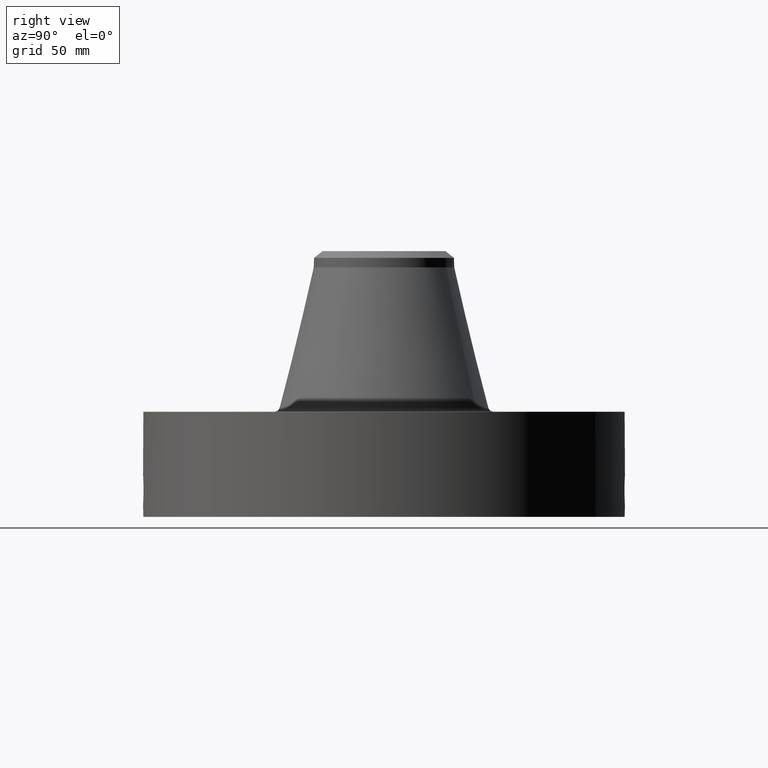
[diagram: clean part render]
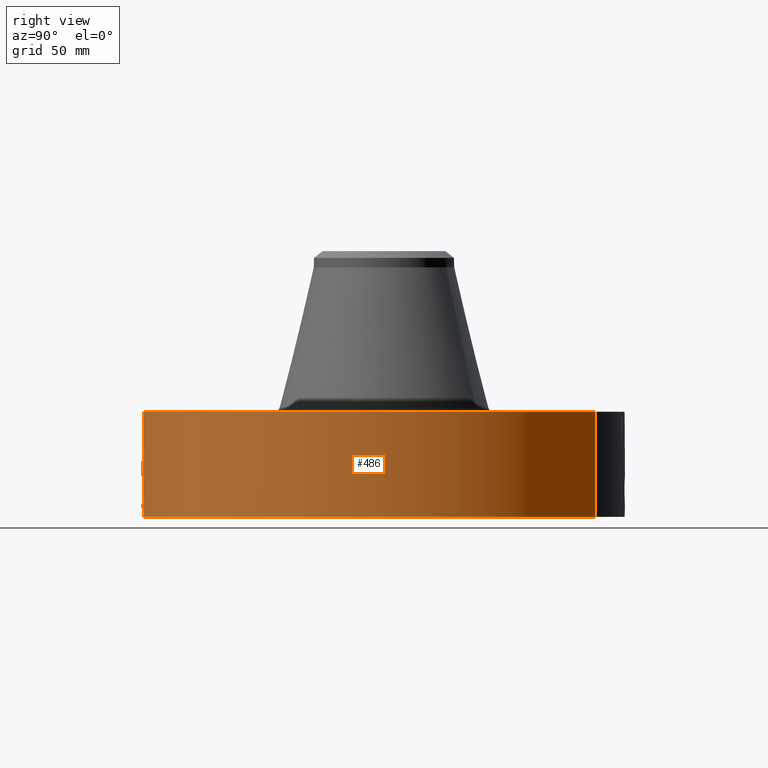
[diagram: same view with one face highlighted and labeled with its STEP entity id]
A machine part, right view. The second image highlights one B-rep face of the part: STEP entity #486.
In plain terms, the highlighted cylindrical surface (partial cylindrical patch) has radius 152.4 mm, axis along (0, 0, -1).
Its self-contained STEP definition (entity closure, byte-faithful):
#38=AXIS2_PLACEMENT_3D('Cylinder Axis2P3D',#35,#36,#37) ;
#168=AXIS2_PLACEMENT_3D('Circle Axis2P3D',#166,#167,$) ;
#391=AXIS2_PLACEMENT_3D('Circle Axis2P3D',#389,#390,$) ;
#35=CARTESIAN_POINT('Axis2P3D Location',(0.,0.,3.56000000001)) ;
#44=CARTESIAN_POINT('Vertex',(-2.87655323164,-5.26549537136,0.250000000001)) ;
#46=CARTESIAN_POINT('Vertex',(2.87655323164,5.26549537136,0.250000000001)) ;
#49=CARTESIAN_POINT('Line Origine',(-2.87655323164,-5.26549537136,1.56000000001)) ;
#53=CARTESIAN_POINT('Vertex',(-2.87655323164,-5.26549537136,2.87000000001)) ;
#60=CARTESIAN_POINT('Vertex',(2.87655323164,5.26549537136,2.87000000001)) ;
#63=CARTESIAN_POINT('Line Origine',(2.87655323164,5.26549537136,1.56000000001)) ;
#166=CARTESIAN_POINT('Axis2P3D Location',(0.,0.,0.250000000001)) ;
#389=CARTESIAN_POINT('Axis2P3D Location',(0.,0.,2.87000000001)) ;
#401=CARTESIAN_POINT('Control Point',(0.0620294013028,-5.99967935424,1.28863374187)) ;
#402=CARTESIAN_POINT('Control Point',(0.0418037851129,-5.99988846256,1.29223902252)) ;
#403=CARTESIAN_POINT('Control Point',(0.0212622128557,-5.99999750311,1.29407680657)) ;
#404=CARTESIAN_POINT('Control Point',(0.000716685683664,-5.99999995722,1.29411849777)) ;
#405=CARTESIAN_POINT('Vertex',(0.0620105319595,-5.99967981312,1.28863740427)) ;
#407=CARTESIAN_POINT('Vertex',(0.000716507124836,-5.99999995724,1.2941185081)) ;
#411=CARTESIAN_POINT('Control Point',(0.0620104179879,-5.99967955047,1.28863679864)) ;
#412=CARTESIAN_POINT('Control Point',(0.0999592678016,-5.99928732552,1.28330765069)) ;
#413=CARTESIAN_POINT('Control Point',(0.137033237672,-5.99853114007,1.27111314227)) ;
#414=CARTESIAN_POINT('Control Point',(0.170989225715,-5.99756306219,1.2530260437)) ;
#415=CARTESIAN_POINT('Vertex',(0.170989225715,-5.99756306219,1.2530260437)) ;
#419=CARTESIAN_POINT('Control Point',(0.0295352196009,-5.99992730548,0.531080988079)) ;
#420=CARTESIAN_POINT('Control Point',(0.0846745731363,-5.99965587671,0.538131857159)) ;
#421=CARTESIAN_POINT('Control Point',(0.138214731709,-5.99875889121,0.555569703531)) ;
#422=CARTESIAN_POINT('Control Point',(0.18735212211,-5.99732239974,0.582824954147)) ;
#423=CARTESIAN_POINT('Control Point',(0.258352875123,-5.99461263626,0.640930942421)) ;
#424=CARTESIAN_POINT('Control Point',(0.309097739755,-5.99207742216,0.714968914108)) ;
#425=CARTESIAN_POINT('Control Point',(0.325805806885,-5.99117148458,0.74639890181)) ;
#426=CARTESIAN_POINT('Control Point',(0.358917505901,-5.98929296898,0.829513569646)) ;
#427=CARTESIAN_POINT('Control Point',(0.368320828409,-5.98867477845,0.91817386083)) ;
#428=CARTESIAN_POINT('Control Point',(0.365106914859,-5.98888227385,0.971925729282)) ;
#429=CARTESIAN_POINT('Control Point',(0.341823092592,-5.99034291637,1.07305905257)) ;
#430=CARTESIAN_POINT('Control Point',(0.287331105999,-5.99321318576,1.1607666671)) ;
#431=CARTESIAN_POINT('Control Point',(0.253998850433,-5.99479985363,1.19857683482)) ;
#432=CARTESIAN_POINT('Control Point',(0.214595044147,-5.99631986974,1.22979883746)) ;
#433=CARTESIAN_POINT('Control Point',(0.170989225715,-5.99756306219,1.2530260437)) ;
#434=CARTESIAN_POINT('Vertex',(0.0295352196009,-5.99992730548,0.531080988079)) ;
#438=CARTESIAN_POINT('Control Point',(0.0295352196009,-5.99992730548,0.531080988079)) ;
#439=CARTESIAN_POINT('Control Point',(0.0196835201685,-5.99997580142,0.530859411968)) ;
#440=CARTESIAN_POINT('Control Point',(0.00982899637296,-6.00000000449,0.530957428553)) ;
#441=CARTESIAN_POINT('Control Point',(-2.72878354929E-006,-6.00000000002,0.531374667805)) ;
#442=CARTESIAN_POINT('Vertex',(-2.72878354041E-006,-6.00000000002,0.531374667805)) ;
#446=CARTESIAN_POINT('Control Point',(-0.193999690977,-5.99686285654,0.584894722229)) ;
#447=CARTESIAN_POINT('Control Point',(-0.134720295085,-5.99878055664,0.552475021084)) ;
#448=CARTESIAN_POINT('Control Point',(-0.0678020792481,-5.99999996919,0.534251942867)) ;
#449=CARTESIAN_POINT('Control Point',(-2.72878352797E-006,-6.00000000002,0.531374667805)) ;
#450=CARTESIAN_POINT('Vertex',(-0.193999690977,-5.99686285654,0.584894722229)) ;
#454=CARTESIAN_POINT('Control Point',(-0.193999690977,-5.99686285654,0.584894722229)) ;
#455=CARTESIAN_POINT('Control Point',(-0.251859413797,-5.99499108315,0.616538007906)) ;
#456=CARTESIAN_POINT('Control Point',(-0.303627825084,-5.99261782234,0.659308829188)) ;
#457=CARTESIAN_POINT('Control Point',(-0.346323547229,-5.9901188201,0.712241413768)) ;
#458=CARTESIAN_POINT('Control Point',(-0.392159455727,-5.98719743365,0.805488409909)) ;
#459=CARTESIAN_POINT('Control Point',(-0.404127731997,-5.98637322028,0.90664845262)) ;
#460=CARTESIAN_POINT('Control Point',(-0.403956516894,-5.98638508904,0.942172161231)) ;
#461=CARTESIAN_POINT('Control Point',(-0.393352499161,-5.98711362657,1.02479378325)) ;
#462=CARTESIAN_POINT('Control Point',(-0.360172895372,-5.98923070751,1.10097852839)) ;
#463=CARTESIAN_POINT('Control Point',(-0.334241397919,-5.99079355044,1.14100482191)) ;
#464=CARTESIAN_POINT('Control Point',(-0.263025752489,-5.99456901644,1.22050217253)) ;
#465=CARTESIAN_POINT('Control Point',(-0.170276281523,-5.99794363217,1.27121609431)) ;
#466=CARTESIAN_POINT('Control Point',(-0.114329592531,-5.99932885512,1.28932921698)) ;
#467=CARTESIAN_POINT('Control Point',(-0.0567531952423,-6.00000024467,1.29693656263)) ;
#468=CARTESIAN_POINT('Control Point',(2.58579355226E-005,-5.99999999997,1.29415298435)) ;
#469=CARTESIAN_POINT('Vertex',(2.5857935525E-005,-5.99999999997,1.29415298435)) ;
#473=CARTESIAN_POINT('Control Point',(0.000716507113867,-5.99999995724,1.29411850809)) ;
#474=CARTESIAN_POINT('Control Point',(0.000371206085568,-5.99999999848,1.29413605376)) ;
#475=CARTESIAN_POINT('Control Point',(2.58579423112E-005,-5.99999999997,1.29415298435)) ;
#36=DIRECTION('Axis2P3D Direction',(0.,0.,-0.0393700787402)) ;
#37=DIRECTION('Axis2P3D XDirection',(0.0188750212049,0.0345504945626,0.)) ;
#50=DIRECTION('Vector Direction',(0.,0.,-0.0393700787402)) ;
#64=DIRECTION('Vector Direction',(0.,0.,-0.0393700787402)) ;
#167=DIRECTION('Axis2P3D Direction',(0.,0.,-0.0393700787402)) ;
#390=DIRECTION('Axis2P3D Direction',(0.,0.,-0.0393700787402)) ;
#51=VECTOR('Line Direction',#50,0.0393700787402) ;
#65=VECTOR('Line Direction',#64,0.0393700787402) ;
#395=ORIENTED_EDGE('',*,*,#170,.F.) ;
#396=ORIENTED_EDGE('',*,*,#67,.T.) ;
#397=ORIENTED_EDGE('',*,*,#393,.T.) ;
#398=ORIENTED_EDGE('',*,*,#55,.F.) ;
#478=ORIENTED_EDGE('',*,*,#409,.F.) ;
#479=ORIENTED_EDGE('',*,*,#417,.T.) ;
#480=ORIENTED_EDGE('',*,*,#436,.F.) ;
#481=ORIENTED_EDGE('',*,*,#444,.T.) ;
#482=ORIENTED_EDGE('',*,*,#452,.F.) ;
#483=ORIENTED_EDGE('',*,*,#471,.T.) ;
#484=ORIENTED_EDGE('',*,*,#476,.F.) ;
#485=FACE_BOUND('',#477,.T.) ;
#486=ADVANCED_FACE('PartBody',(#399,#485),#39,.T.) ;
#400=B_SPLINE_CURVE_WITH_KNOTS('',3,(#401,#402,#403,#404),.UNSPECIFIED.,.F.,.U.,(4,4),(4.2423375894,6.52167903667),.UNSPECIFIED.) ;
#410=B_SPLINE_CURVE_WITH_KNOTS('',3,(#411,#412,#413,#414),.UNSPECIFIED.,.F.,.U.,(4,4),(0.,4.30575151373),.UNSPECIFIED.) ;
#418=B_SPLINE_CURVE_WITH_KNOTS('',5,(#419,#420,#421,#422,#423,#424,#425,#426,#427,#428,#429,#430,#431,#432,#433),.UNSPECIFIED.,.F.,.U.,(6,3,3,3,6),(0.,9.6612847148,16.0502596987,25.8410470496,35.056693032),.UNSPECIFIED.) ;
#437=B_SPLINE_CURVE_WITH_KNOTS('',3,(#438,#439,#440,#441),.UNSPECIFIED.,.F.,.U.,(4,4),(0.,1.02753024697),.UNSPECIFIED.) ;
#445=B_SPLINE_CURVE_WITH_KNOTS('',3,(#446,#447,#448,#449),.UNSPECIFIED.,.F.,.U.,(4,4),(0.,7.08582495936),.UNSPECIFIED.) ;
#453=B_SPLINE_CURVE_WITH_KNOTS('',5,(#454,#455,#456,#457,#458,#459,#460,#461,#462,#463,#464,#465,#466,#467,#468),.UNSPECIFIED.,.F.,.U.,(6,3,3,3,6),(0.,11.5268793031,17.6888368928,26.053880327,36.667061598),.UNSPECIFIED.) ;
#472=B_SPLINE_CURVE_WITH_KNOTS('',2,(#473,#474,#475),.UNSPECIFIED.,.F.,.U.,(3,3),(1.07551920359,1.10134029396),.UNSPECIFIED.) ;
#169=CIRCLE('generated circle',#168,6.00000000002) ;
#392=CIRCLE('generated circle',#391,6.00000000002) ;
#39=CYLINDRICAL_SURFACE('generated cylinder',#38,6.00000000002) ;
#55=EDGE_CURVE('',#45,#54,#52,.F.) ;
#67=EDGE_CURVE('',#47,#61,#66,.F.) ;
#170=EDGE_CURVE('',#47,#45,#169,.T.) ;
#393=EDGE_CURVE('',#61,#54,#392,.T.) ;
#409=EDGE_CURVE('',#406,#408,#400,.T.) ;
#417=EDGE_CURVE('',#406,#416,#410,.T.) ;
#436=EDGE_CURVE('',#435,#416,#418,.T.) ;
#444=EDGE_CURVE('',#435,#443,#437,.T.) ;
#452=EDGE_CURVE('',#451,#443,#445,.T.) ;
#471=EDGE_CURVE('',#451,#470,#453,.T.) ;
#476=EDGE_CURVE('',#408,#470,#472,.T.) ;
#394=EDGE_LOOP('',(#395,#396,#397,#398)) ;
#477=EDGE_LOOP('',(#478,#479,#480,#481,#482,#483,#484)) ;
#399=FACE_OUTER_BOUND('',#394,.T.) ;
#52=LINE('Line',#49,#51) ;
#66=LINE('Line',#63,#65) ;
#45=VERTEX_POINT('',#44) ;
#47=VERTEX_POINT('',#46) ;
#54=VERTEX_POINT('',#53) ;
#61=VERTEX_POINT('',#60) ;
#406=VERTEX_POINT('',#405) ;
#408=VERTEX_POINT('',#407) ;
#416=VERTEX_POINT('',#415) ;
#435=VERTEX_POINT('',#434) ;
#443=VERTEX_POINT('',#442) ;
#451=VERTEX_POINT('',#450) ;
#470=VERTEX_POINT('',#469) ;